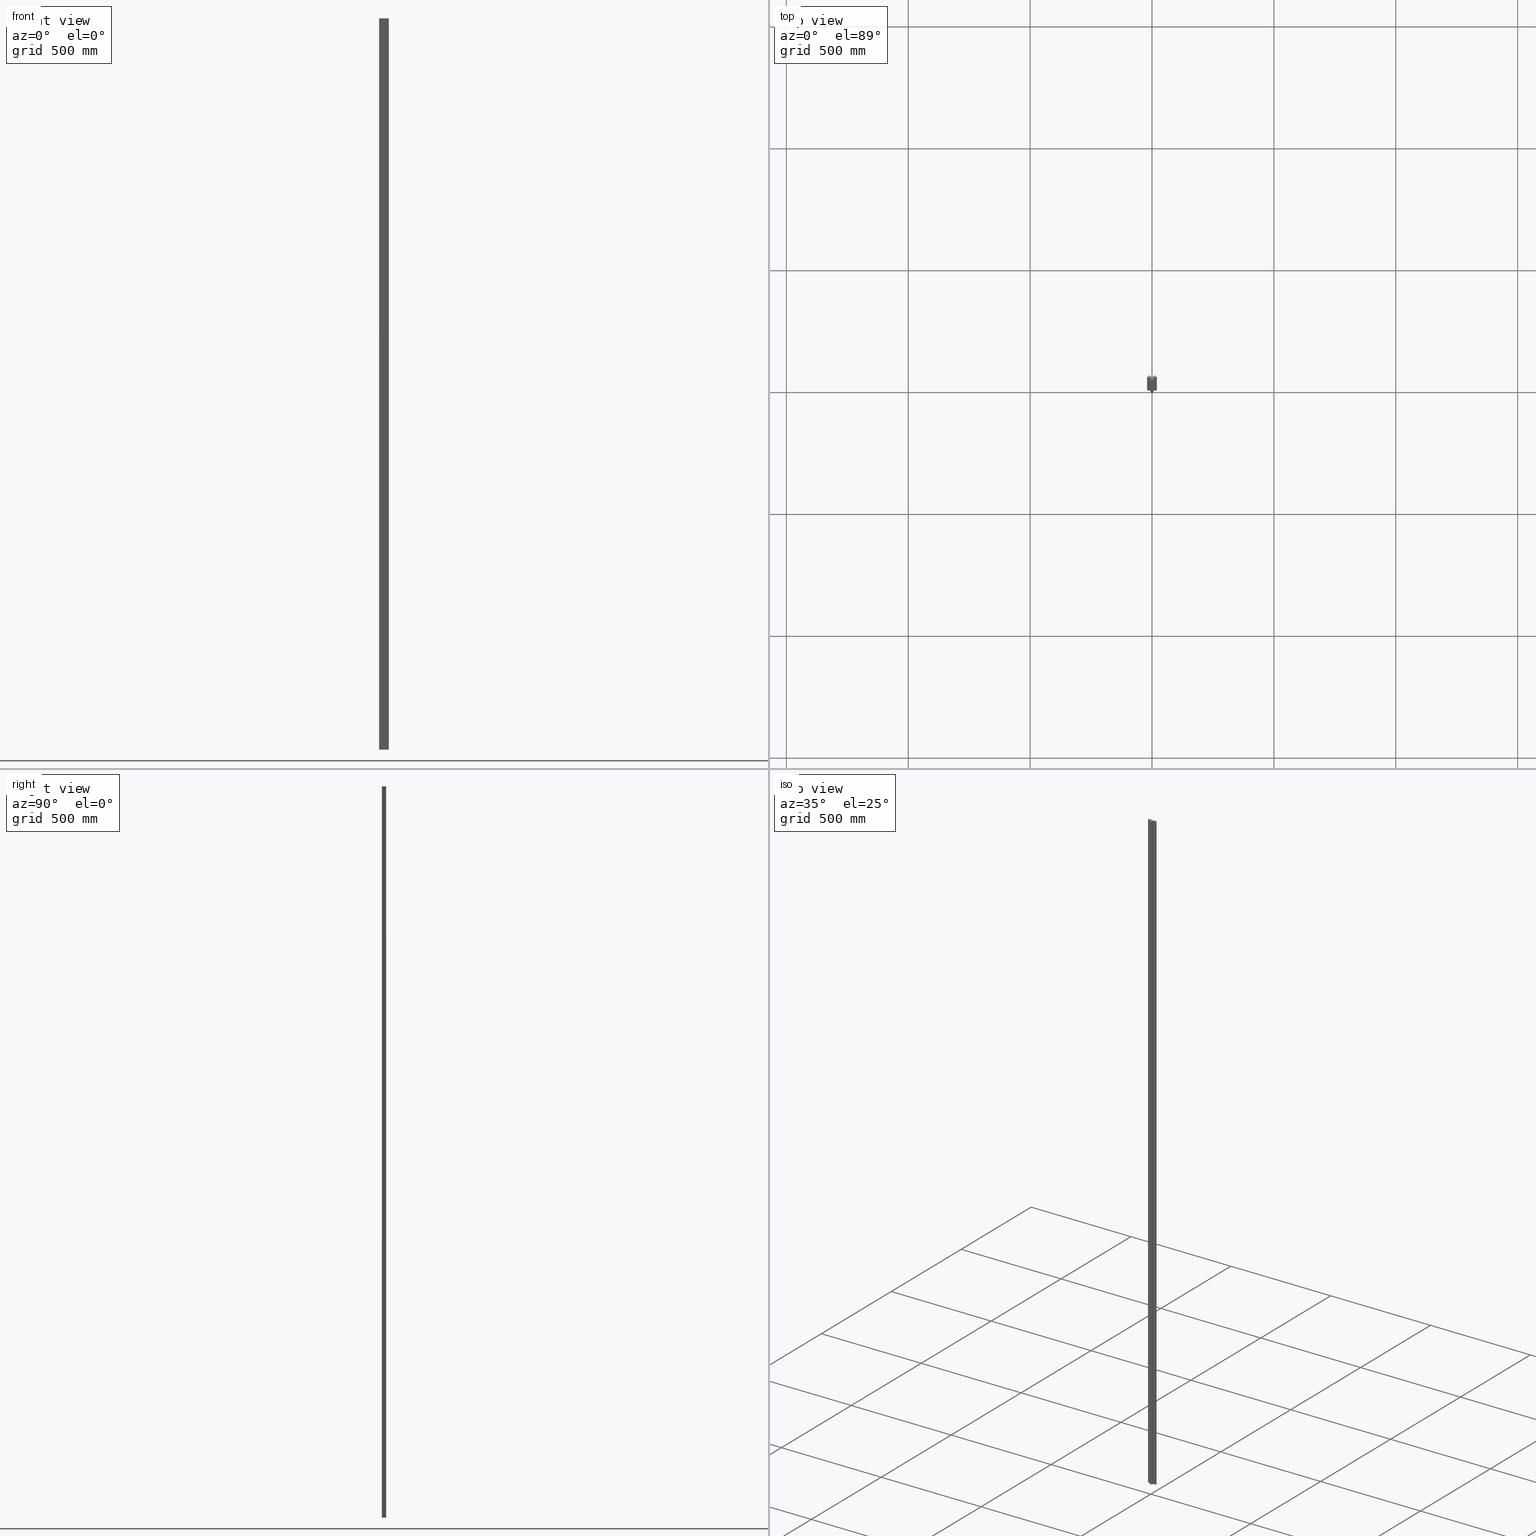
[diagram: canonical four-view strip — front | top / right | iso, engineering-drawing reading convention]
A machine part, canonical four-view strip (front | top / right | iso — engineering-drawing reading convention). The complete STEP part file that produces these views, byte-faithful:
ISO-10303-21;
HEADER;
/* Generated by software containing ST-Developer
 * from STEP Tools, Inc. (www.steptools.com) 
 */

FILE_DESCRIPTION(
/* description */ ('PROF.POLIZENE 40X17'),
/* implementation_level */ '2;1');

FILE_NAME(
/* name */ 
'C:\\Users\\tecnico7\\Desktop\\NUOVI DISEGNI 3D\\APRPZ0000022.stp',
/* time_stamp */ '2022-11-24T16:43:35+01:00',
/* author */ ('tecnico7'),
/* organization */ (''),
/* preprocessor_version */ 'ST-DEVELOPER v18.1',
/* originating_system */ 'Autodesk Inventor 2022',
/* authorisation */ '');

FILE_SCHEMA (('AUTOMOTIVE_DESIGN { 1 0 10303 214 3 1 1 }'));
ENDSEC;

DATA;
#10=MECHANICAL_DESIGN_GEOMETRIC_PRESENTATION_REPRESENTATION('',(#13),#860);
#11=SHAPE_REPRESENTATION_RELATIONSHIP('SRR','None',#867,#12);
#12=ADVANCED_BREP_SHAPE_REPRESENTATION('',(#14),#859);
#13=STYLED_ITEM('',(#876),#14);
#14=MANIFOLD_SOLID_BREP('Solido1',#519);
#15=CIRCLE('',#550,1.);
#16=CIRCLE('',#551,1.);
#17=CIRCLE('',#554,1.);
#18=CIRCLE('',#555,1.);
#19=CIRCLE('',#566,1.);
#20=CIRCLE('',#567,1.);
#21=CIRCLE('',#570,1.);
#22=CIRCLE('',#571,1.);
#23=CYLINDRICAL_SURFACE('',#549,1.);
#24=CYLINDRICAL_SURFACE('',#553,1.);
#25=CYLINDRICAL_SURFACE('',#565,1.);
#26=CYLINDRICAL_SURFACE('',#569,1.);
#27=FACE_OUTER_BOUND('',#53,.T.);
#28=FACE_OUTER_BOUND('',#54,.T.);
#29=FACE_OUTER_BOUND('',#55,.T.);
#30=FACE_OUTER_BOUND('',#56,.T.);
#31=FACE_OUTER_BOUND('',#57,.T.);
#32=FACE_OUTER_BOUND('',#58,.T.);
#33=FACE_OUTER_BOUND('',#59,.T.);
#34=FACE_OUTER_BOUND('',#60,.T.);
#35=FACE_OUTER_BOUND('',#61,.T.);
#36=FACE_OUTER_BOUND('',#62,.T.);
#37=FACE_OUTER_BOUND('',#63,.T.);
#38=FACE_OUTER_BOUND('',#64,.T.);
#39=FACE_OUTER_BOUND('',#65,.T.);
#40=FACE_OUTER_BOUND('',#66,.T.);
#41=FACE_OUTER_BOUND('',#67,.T.);
#42=FACE_OUTER_BOUND('',#68,.T.);
#43=FACE_OUTER_BOUND('',#69,.T.);
#44=FACE_OUTER_BOUND('',#70,.T.);
#45=FACE_OUTER_BOUND('',#71,.T.);
#46=FACE_OUTER_BOUND('',#72,.T.);
#47=FACE_OUTER_BOUND('',#73,.T.);
#48=FACE_OUTER_BOUND('',#74,.T.);
#49=FACE_OUTER_BOUND('',#75,.T.);
#50=FACE_OUTER_BOUND('',#76,.T.);
#51=FACE_OUTER_BOUND('',#77,.T.);
#52=FACE_OUTER_BOUND('',#78,.T.);
#53=EDGE_LOOP('',(#327,#328,#329,#330));
#54=EDGE_LOOP('',(#331,#332,#333,#334));
#55=EDGE_LOOP('',(#335,#336,#337,#338));
#56=EDGE_LOOP('',(#339,#340,#341,#342));
#57=EDGE_LOOP('',(#343,#344,#345,#346));
#58=EDGE_LOOP('',(#347,#348,#349,#350));
#59=EDGE_LOOP('',(#351,#352,#353,#354));
#60=EDGE_LOOP('',(#355,#356,#357,#358));
#61=EDGE_LOOP('',(#359,#360,#361,#362));
#62=EDGE_LOOP('',(#363,#364,#365,#366));
#63=EDGE_LOOP('',(#367,#368,#369,#370));
#64=EDGE_LOOP('',(#371,#372,#373,#374));
#65=EDGE_LOOP('',(#375,#376,#377,#378));
#66=EDGE_LOOP('',(#379,#380,#381,#382));
#67=EDGE_LOOP('',(#383,#384,#385,#386));
#68=EDGE_LOOP('',(#387,#388,#389,#390));
#69=EDGE_LOOP('',(#391,#392,#393,#394));
#70=EDGE_LOOP('',(#395,#396,#397,#398));
#71=EDGE_LOOP('',(#399,#400,#401,#402));
#72=EDGE_LOOP('',(#403,#404,#405,#406));
#73=EDGE_LOOP('',(#407,#408,#409,#410));
#74=EDGE_LOOP('',(#411,#412,#413,#414));
#75=EDGE_LOOP('',(#415,#416,#417,#418));
#76=EDGE_LOOP('',(#419,#420,#421,#422));
#77=EDGE_LOOP('',(#423,#424,#425,#426,#427,#428,#429,#430,#431,#432,#433,
#434,#435,#436,#437,#438,#439,#440,#441,#442,#443,#444,#445,#446));
#78=EDGE_LOOP('',(#447,#448,#449,#450,#451,#452,#453,#454,#455,#456,#457,
#458,#459,#460,#461,#462,#463,#464,#465,#466,#467,#468,#469,#470));
#79=LINE('',#714,#143);
#80=LINE('',#716,#144);
#81=LINE('',#718,#145);
#82=LINE('',#719,#146);
#83=LINE('',#722,#147);
#84=LINE('',#724,#148);
#85=LINE('',#725,#149);
#86=LINE('',#728,#150);
#87=LINE('',#730,#151);
#88=LINE('',#731,#152);
#89=LINE('',#734,#153);
#90=LINE('',#736,#154);
#91=LINE('',#737,#155);
#92=LINE('',#740,#156);
#93=LINE('',#742,#157);
#94=LINE('',#743,#158);
#95=LINE('',#746,#159);
#96=LINE('',#748,#160);
#97=LINE('',#749,#161);
#98=LINE('',#752,#162);
#99=LINE('',#754,#163);
#100=LINE('',#755,#164);
#101=LINE('',#761,#165);
#102=LINE('',#764,#166);
#103=LINE('',#766,#167);
#104=LINE('',#767,#168);
#105=LINE('',#773,#169);
#106=LINE('',#776,#170);
#107=LINE('',#778,#171);
#108=LINE('',#779,#172);
#109=LINE('',#782,#173);
#110=LINE('',#784,#174);
#111=LINE('',#785,#175);
#112=LINE('',#788,#176);
#113=LINE('',#790,#177);
#114=LINE('',#791,#178);
#115=LINE('',#794,#179);
#116=LINE('',#796,#180);
#117=LINE('',#797,#181);
#118=LINE('',#800,#182);
#119=LINE('',#802,#183);
#120=LINE('',#803,#184);
#121=LINE('',#806,#185);
#122=LINE('',#808,#186);
#123=LINE('',#809,#187);
#124=LINE('',#812,#188);
#125=LINE('',#814,#189);
#126=LINE('',#815,#190);
#127=LINE('',#818,#191);
#128=LINE('',#820,#192);
#129=LINE('',#821,#193);
#130=LINE('',#824,#194);
#131=LINE('',#826,#195);
#132=LINE('',#827,#196);
#133=LINE('',#833,#197);
#134=LINE('',#836,#198);
#135=LINE('',#838,#199);
#136=LINE('',#839,#200);
#137=LINE('',#845,#201);
#138=LINE('',#848,#202);
#139=LINE('',#850,#203);
#140=LINE('',#851,#204);
#141=LINE('',#853,#205);
#142=LINE('',#854,#206);
#143=VECTOR('',#580,10.);
#144=VECTOR('',#581,10.);
#145=VECTOR('',#582,10.);
#146=VECTOR('',#583,10.);
#147=VECTOR('',#586,10.);
#148=VECTOR('',#587,10.);
#149=VECTOR('',#588,10.);
#150=VECTOR('',#591,10.);
#151=VECTOR('',#592,10.);
#152=VECTOR('',#593,10.);
#153=VECTOR('',#596,10.);
#154=VECTOR('',#597,10.);
#155=VECTOR('',#598,10.);
#156=VECTOR('',#601,10.);
#157=VECTOR('',#602,10.);
#158=VECTOR('',#603,10.);
#159=VECTOR('',#606,10.);
#160=VECTOR('',#607,10.);
#161=VECTOR('',#608,10.);
#162=VECTOR('',#611,10.);
#163=VECTOR('',#612,10.);
#164=VECTOR('',#613,10.);
#165=VECTOR('',#620,10.);
#166=VECTOR('',#623,10.);
#167=VECTOR('',#624,10.);
#168=VECTOR('',#625,10.);
#169=VECTOR('',#632,10.);
#170=VECTOR('',#635,10.);
#171=VECTOR('',#636,10.);
#172=VECTOR('',#637,10.);
#173=VECTOR('',#640,10.);
#174=VECTOR('',#641,10.);
#175=VECTOR('',#642,10.);
#176=VECTOR('',#645,10.);
#177=VECTOR('',#646,10.);
#178=VECTOR('',#647,10.);
#179=VECTOR('',#650,10.);
#180=VECTOR('',#651,10.);
#181=VECTOR('',#652,10.);
#182=VECTOR('',#655,10.);
#183=VECTOR('',#656,10.);
#184=VECTOR('',#657,10.);
#185=VECTOR('',#660,10.);
#186=VECTOR('',#661,10.);
#187=VECTOR('',#662,10.);
#188=VECTOR('',#665,10.);
#189=VECTOR('',#666,10.);
#190=VECTOR('',#667,10.);
#191=VECTOR('',#670,10.);
#192=VECTOR('',#671,10.);
#193=VECTOR('',#672,10.);
#194=VECTOR('',#675,10.);
#195=VECTOR('',#676,10.);
#196=VECTOR('',#677,10.);
#197=VECTOR('',#684,10.);
#198=VECTOR('',#687,10.);
#199=VECTOR('',#688,10.);
#200=VECTOR('',#689,10.);
#201=VECTOR('',#696,10.);
#202=VECTOR('',#699,10.);
#203=VECTOR('',#700,10.);
#204=VECTOR('',#701,10.);
#205=VECTOR('',#704,10.);
#206=VECTOR('',#705,10.);
#207=VERTEX_POINT('',#712);
#208=VERTEX_POINT('',#713);
#209=VERTEX_POINT('',#715);
#210=VERTEX_POINT('',#717);
#211=VERTEX_POINT('',#721);
#212=VERTEX_POINT('',#723);
#213=VERTEX_POINT('',#727);
#214=VERTEX_POINT('',#729);
#215=VERTEX_POINT('',#733);
#216=VERTEX_POINT('',#735);
#217=VERTEX_POINT('',#739);
#218=VERTEX_POINT('',#741);
#219=VERTEX_POINT('',#745);
#220=VERTEX_POINT('',#747);
#221=VERTEX_POINT('',#751);
#222=VERTEX_POINT('',#753);
#223=VERTEX_POINT('',#757);
#224=VERTEX_POINT('',#759);
#225=VERTEX_POINT('',#763);
#226=VERTEX_POINT('',#765);
#227=VERTEX_POINT('',#769);
#228=VERTEX_POINT('',#771);
#229=VERTEX_POINT('',#775);
#230=VERTEX_POINT('',#777);
#231=VERTEX_POINT('',#781);
#232=VERTEX_POINT('',#783);
#233=VERTEX_POINT('',#787);
#234=VERTEX_POINT('',#789);
#235=VERTEX_POINT('',#793);
#236=VERTEX_POINT('',#795);
#237=VERTEX_POINT('',#799);
#238=VERTEX_POINT('',#801);
#239=VERTEX_POINT('',#805);
#240=VERTEX_POINT('',#807);
#241=VERTEX_POINT('',#811);
#242=VERTEX_POINT('',#813);
#243=VERTEX_POINT('',#817);
#244=VERTEX_POINT('',#819);
#245=VERTEX_POINT('',#823);
#246=VERTEX_POINT('',#825);
#247=VERTEX_POINT('',#829);
#248=VERTEX_POINT('',#831);
#249=VERTEX_POINT('',#835);
#250=VERTEX_POINT('',#837);
#251=VERTEX_POINT('',#841);
#252=VERTEX_POINT('',#843);
#253=VERTEX_POINT('',#847);
#254=VERTEX_POINT('',#849);
#255=EDGE_CURVE('',#207,#208,#79,.T.);
#256=EDGE_CURVE('',#207,#209,#80,.T.);
#257=EDGE_CURVE('',#210,#209,#81,.T.);
#258=EDGE_CURVE('',#208,#210,#82,.T.);
#259=EDGE_CURVE('',#208,#211,#83,.T.);
#260=EDGE_CURVE('',#212,#210,#84,.T.);
#261=EDGE_CURVE('',#211,#212,#85,.T.);
#262=EDGE_CURVE('',#211,#213,#86,.T.);
#263=EDGE_CURVE('',#214,#212,#87,.T.);
#264=EDGE_CURVE('',#213,#214,#88,.T.);
#265=EDGE_CURVE('',#213,#215,#89,.T.);
#266=EDGE_CURVE('',#216,#214,#90,.T.);
#267=EDGE_CURVE('',#215,#216,#91,.T.);
#268=EDGE_CURVE('',#215,#217,#92,.T.);
#269=EDGE_CURVE('',#218,#216,#93,.T.);
#270=EDGE_CURVE('',#217,#218,#94,.T.);
#271=EDGE_CURVE('',#217,#219,#95,.T.);
#272=EDGE_CURVE('',#220,#218,#96,.T.);
#273=EDGE_CURVE('',#219,#220,#97,.T.);
#274=EDGE_CURVE('',#219,#221,#98,.T.);
#275=EDGE_CURVE('',#222,#220,#99,.T.);
#276=EDGE_CURVE('',#221,#222,#100,.T.);
#277=EDGE_CURVE('',#221,#223,#15,.T.);
#278=EDGE_CURVE('',#224,#222,#16,.T.);
#279=EDGE_CURVE('',#223,#224,#101,.T.);
#280=EDGE_CURVE('',#223,#225,#102,.T.);
#281=EDGE_CURVE('',#226,#224,#103,.T.);
#282=EDGE_CURVE('',#225,#226,#104,.T.);
#283=EDGE_CURVE('',#225,#227,#17,.T.);
#284=EDGE_CURVE('',#228,#226,#18,.T.);
#285=EDGE_CURVE('',#227,#228,#105,.T.);
#286=EDGE_CURVE('',#227,#229,#106,.T.);
#287=EDGE_CURVE('',#230,#228,#107,.T.);
#288=EDGE_CURVE('',#229,#230,#108,.T.);
#289=EDGE_CURVE('',#229,#231,#109,.T.);
#290=EDGE_CURVE('',#232,#230,#110,.T.);
#291=EDGE_CURVE('',#231,#232,#111,.T.);
#292=EDGE_CURVE('',#231,#233,#112,.T.);
#293=EDGE_CURVE('',#234,#232,#113,.T.);
#294=EDGE_CURVE('',#233,#234,#114,.T.);
#295=EDGE_CURVE('',#233,#235,#115,.T.);
#296=EDGE_CURVE('',#236,#234,#116,.T.);
#297=EDGE_CURVE('',#235,#236,#117,.T.);
#298=EDGE_CURVE('',#235,#237,#118,.T.);
#299=EDGE_CURVE('',#238,#236,#119,.T.);
#300=EDGE_CURVE('',#237,#238,#120,.T.);
#301=EDGE_CURVE('',#237,#239,#121,.T.);
#302=EDGE_CURVE('',#240,#238,#122,.T.);
#303=EDGE_CURVE('',#239,#240,#123,.T.);
#304=EDGE_CURVE('',#239,#241,#124,.T.);
#305=EDGE_CURVE('',#242,#240,#125,.T.);
#306=EDGE_CURVE('',#241,#242,#126,.T.);
#307=EDGE_CURVE('',#241,#243,#127,.T.);
#308=EDGE_CURVE('',#244,#242,#128,.T.);
#309=EDGE_CURVE('',#243,#244,#129,.T.);
#310=EDGE_CURVE('',#243,#245,#130,.T.);
#311=EDGE_CURVE('',#246,#244,#131,.T.);
#312=EDGE_CURVE('',#245,#246,#132,.T.);
#313=EDGE_CURVE('',#245,#247,#19,.T.);
#314=EDGE_CURVE('',#248,#246,#20,.T.);
#315=EDGE_CURVE('',#247,#248,#133,.T.);
#316=EDGE_CURVE('',#247,#249,#134,.T.);
#317=EDGE_CURVE('',#250,#248,#135,.T.);
#318=EDGE_CURVE('',#249,#250,#136,.T.);
#319=EDGE_CURVE('',#249,#251,#21,.T.);
#320=EDGE_CURVE('',#252,#250,#22,.T.);
#321=EDGE_CURVE('',#251,#252,#137,.T.);
#322=EDGE_CURVE('',#251,#253,#138,.T.);
#323=EDGE_CURVE('',#254,#252,#139,.T.);
#324=EDGE_CURVE('',#253,#254,#140,.T.);
#325=EDGE_CURVE('',#253,#207,#141,.T.);
#326=EDGE_CURVE('',#209,#254,#142,.T.);
#327=ORIENTED_EDGE('',*,*,#255,.F.);
#328=ORIENTED_EDGE('',*,*,#256,.T.);
#329=ORIENTED_EDGE('',*,*,#257,.F.);
#330=ORIENTED_EDGE('',*,*,#258,.F.);
#331=ORIENTED_EDGE('',*,*,#259,.F.);
#332=ORIENTED_EDGE('',*,*,#258,.T.);
#333=ORIENTED_EDGE('',*,*,#260,.F.);
#334=ORIENTED_EDGE('',*,*,#261,.F.);
#335=ORIENTED_EDGE('',*,*,#262,.F.);
#336=ORIENTED_EDGE('',*,*,#261,.T.);
#337=ORIENTED_EDGE('',*,*,#263,.F.);
#338=ORIENTED_EDGE('',*,*,#264,.F.);
#339=ORIENTED_EDGE('',*,*,#265,.F.);
#340=ORIENTED_EDGE('',*,*,#264,.T.);
#341=ORIENTED_EDGE('',*,*,#266,.F.);
#342=ORIENTED_EDGE('',*,*,#267,.F.);
#343=ORIENTED_EDGE('',*,*,#268,.F.);
#344=ORIENTED_EDGE('',*,*,#267,.T.);
#345=ORIENTED_EDGE('',*,*,#269,.F.);
#346=ORIENTED_EDGE('',*,*,#270,.F.);
#347=ORIENTED_EDGE('',*,*,#271,.F.);
#348=ORIENTED_EDGE('',*,*,#270,.T.);
#349=ORIENTED_EDGE('',*,*,#272,.F.);
#350=ORIENTED_EDGE('',*,*,#273,.F.);
#351=ORIENTED_EDGE('',*,*,#274,.F.);
#352=ORIENTED_EDGE('',*,*,#273,.T.);
#353=ORIENTED_EDGE('',*,*,#275,.F.);
#354=ORIENTED_EDGE('',*,*,#276,.F.);
#355=ORIENTED_EDGE('',*,*,#277,.F.);
#356=ORIENTED_EDGE('',*,*,#276,.T.);
#357=ORIENTED_EDGE('',*,*,#278,.F.);
#358=ORIENTED_EDGE('',*,*,#279,.F.);
#359=ORIENTED_EDGE('',*,*,#280,.F.);
#360=ORIENTED_EDGE('',*,*,#279,.T.);
#361=ORIENTED_EDGE('',*,*,#281,.F.);
#362=ORIENTED_EDGE('',*,*,#282,.F.);
#363=ORIENTED_EDGE('',*,*,#283,.F.);
#364=ORIENTED_EDGE('',*,*,#282,.T.);
#365=ORIENTED_EDGE('',*,*,#284,.F.);
#366=ORIENTED_EDGE('',*,*,#285,.F.);
#367=ORIENTED_EDGE('',*,*,#286,.F.);
#368=ORIENTED_EDGE('',*,*,#285,.T.);
#369=ORIENTED_EDGE('',*,*,#287,.F.);
#370=ORIENTED_EDGE('',*,*,#288,.F.);
#371=ORIENTED_EDGE('',*,*,#289,.F.);
#372=ORIENTED_EDGE('',*,*,#288,.T.);
#373=ORIENTED_EDGE('',*,*,#290,.F.);
#374=ORIENTED_EDGE('',*,*,#291,.F.);
#375=ORIENTED_EDGE('',*,*,#292,.F.);
#376=ORIENTED_EDGE('',*,*,#291,.T.);
#377=ORIENTED_EDGE('',*,*,#293,.F.);
#378=ORIENTED_EDGE('',*,*,#294,.F.);
#379=ORIENTED_EDGE('',*,*,#295,.F.);
#380=ORIENTED_EDGE('',*,*,#294,.T.);
#381=ORIENTED_EDGE('',*,*,#296,.F.);
#382=ORIENTED_EDGE('',*,*,#297,.F.);
#383=ORIENTED_EDGE('',*,*,#298,.F.);
#384=ORIENTED_EDGE('',*,*,#297,.T.);
#385=ORIENTED_EDGE('',*,*,#299,.F.);
#386=ORIENTED_EDGE('',*,*,#300,.F.);
#387=ORIENTED_EDGE('',*,*,#301,.F.);
#388=ORIENTED_EDGE('',*,*,#300,.T.);
#389=ORIENTED_EDGE('',*,*,#302,.F.);
#390=ORIENTED_EDGE('',*,*,#303,.F.);
#391=ORIENTED_EDGE('',*,*,#304,.F.);
#392=ORIENTED_EDGE('',*,*,#303,.T.);
#393=ORIENTED_EDGE('',*,*,#305,.F.);
#394=ORIENTED_EDGE('',*,*,#306,.F.);
#395=ORIENTED_EDGE('',*,*,#307,.F.);
#396=ORIENTED_EDGE('',*,*,#306,.T.);
#397=ORIENTED_EDGE('',*,*,#308,.F.);
#398=ORIENTED_EDGE('',*,*,#309,.F.);
#399=ORIENTED_EDGE('',*,*,#310,.F.);
#400=ORIENTED_EDGE('',*,*,#309,.T.);
#401=ORIENTED_EDGE('',*,*,#311,.F.);
#402=ORIENTED_EDGE('',*,*,#312,.F.);
#403=ORIENTED_EDGE('',*,*,#313,.F.);
#404=ORIENTED_EDGE('',*,*,#312,.T.);
#405=ORIENTED_EDGE('',*,*,#314,.F.);
#406=ORIENTED_EDGE('',*,*,#315,.F.);
#407=ORIENTED_EDGE('',*,*,#316,.F.);
#408=ORIENTED_EDGE('',*,*,#315,.T.);
#409=ORIENTED_EDGE('',*,*,#317,.F.);
#410=ORIENTED_EDGE('',*,*,#318,.F.);
#411=ORIENTED_EDGE('',*,*,#319,.F.);
#412=ORIENTED_EDGE('',*,*,#318,.T.);
#413=ORIENTED_EDGE('',*,*,#320,.F.);
#414=ORIENTED_EDGE('',*,*,#321,.F.);
#415=ORIENTED_EDGE('',*,*,#322,.F.);
#416=ORIENTED_EDGE('',*,*,#321,.T.);
#417=ORIENTED_EDGE('',*,*,#323,.F.);
#418=ORIENTED_EDGE('',*,*,#324,.F.);
#419=ORIENTED_EDGE('',*,*,#325,.F.);
#420=ORIENTED_EDGE('',*,*,#324,.T.);
#421=ORIENTED_EDGE('',*,*,#326,.F.);
#422=ORIENTED_EDGE('',*,*,#256,.F.);
#423=ORIENTED_EDGE('',*,*,#325,.T.);
#424=ORIENTED_EDGE('',*,*,#255,.T.);
#425=ORIENTED_EDGE('',*,*,#259,.T.);
#426=ORIENTED_EDGE('',*,*,#262,.T.);
#427=ORIENTED_EDGE('',*,*,#265,.T.);
#428=ORIENTED_EDGE('',*,*,#268,.T.);
#429=ORIENTED_EDGE('',*,*,#271,.T.);
#430=ORIENTED_EDGE('',*,*,#274,.T.);
#431=ORIENTED_EDGE('',*,*,#277,.T.);
#432=ORIENTED_EDGE('',*,*,#280,.T.);
#433=ORIENTED_EDGE('',*,*,#283,.T.);
#434=ORIENTED_EDGE('',*,*,#286,.T.);
#435=ORIENTED_EDGE('',*,*,#289,.T.);
#436=ORIENTED_EDGE('',*,*,#292,.T.);
#437=ORIENTED_EDGE('',*,*,#295,.T.);
#438=ORIENTED_EDGE('',*,*,#298,.T.);
#439=ORIENTED_EDGE('',*,*,#301,.T.);
#440=ORIENTED_EDGE('',*,*,#304,.T.);
#441=ORIENTED_EDGE('',*,*,#307,.T.);
#442=ORIENTED_EDGE('',*,*,#310,.T.);
#443=ORIENTED_EDGE('',*,*,#313,.T.);
#444=ORIENTED_EDGE('',*,*,#316,.T.);
#445=ORIENTED_EDGE('',*,*,#319,.T.);
#446=ORIENTED_EDGE('',*,*,#322,.T.);
#447=ORIENTED_EDGE('',*,*,#326,.T.);
#448=ORIENTED_EDGE('',*,*,#323,.T.);
#449=ORIENTED_EDGE('',*,*,#320,.T.);
#450=ORIENTED_EDGE('',*,*,#317,.T.);
#451=ORIENTED_EDGE('',*,*,#314,.T.);
#452=ORIENTED_EDGE('',*,*,#311,.T.);
#453=ORIENTED_EDGE('',*,*,#308,.T.);
#454=ORIENTED_EDGE('',*,*,#305,.T.);
#455=ORIENTED_EDGE('',*,*,#302,.T.);
#456=ORIENTED_EDGE('',*,*,#299,.T.);
#457=ORIENTED_EDGE('',*,*,#296,.T.);
#458=ORIENTED_EDGE('',*,*,#293,.T.);
#459=ORIENTED_EDGE('',*,*,#290,.T.);
#460=ORIENTED_EDGE('',*,*,#287,.T.);
#461=ORIENTED_EDGE('',*,*,#284,.T.);
#462=ORIENTED_EDGE('',*,*,#281,.T.);
#463=ORIENTED_EDGE('',*,*,#278,.T.);
#464=ORIENTED_EDGE('',*,*,#275,.T.);
#465=ORIENTED_EDGE('',*,*,#272,.T.);
#466=ORIENTED_EDGE('',*,*,#269,.T.);
#467=ORIENTED_EDGE('',*,*,#266,.T.);
#468=ORIENTED_EDGE('',*,*,#263,.T.);
#469=ORIENTED_EDGE('',*,*,#260,.T.);
#470=ORIENTED_EDGE('',*,*,#257,.T.);
#471=PLANE('',#542);
#472=PLANE('',#543);
#473=PLANE('',#544);
#474=PLANE('',#545);
#475=PLANE('',#546);
#476=PLANE('',#547);
#477=PLANE('',#548);
#478=PLANE('',#552);
#479=PLANE('',#556);
#480=PLANE('',#557);
#481=PLANE('',#558);
#482=PLANE('',#559);
#483=PLANE('',#560);
#484=PLANE('',#561);
#485=PLANE('',#562);
#486=PLANE('',#563);
#487=PLANE('',#564);
#488=PLANE('',#568);
#489=PLANE('',#572);
#490=PLANE('',#573);
#491=PLANE('',#574);
#492=PLANE('',#575);
#493=ADVANCED_FACE('',(#27),#471,.T.);
#494=ADVANCED_FACE('',(#28),#472,.T.);
#495=ADVANCED_FACE('',(#29),#473,.T.);
#496=ADVANCED_FACE('',(#30),#474,.T.);
#497=ADVANCED_FACE('',(#31),#475,.T.);
#498=ADVANCED_FACE('',(#32),#476,.T.);
#499=ADVANCED_FACE('',(#33),#477,.T.);
#500=ADVANCED_FACE('',(#34),#23,.T.);
#501=ADVANCED_FACE('',(#35),#478,.T.);
#502=ADVANCED_FACE('',(#36),#24,.T.);
#503=ADVANCED_FACE('',(#37),#479,.T.);
#504=ADVANCED_FACE('',(#38),#480,.T.);
#505=ADVANCED_FACE('',(#39),#481,.T.);
#506=ADVANCED_FACE('',(#40),#482,.T.);
#507=ADVANCED_FACE('',(#41),#483,.T.);
#508=ADVANCED_FACE('',(#42),#484,.T.);
#509=ADVANCED_FACE('',(#43),#485,.T.);
#510=ADVANCED_FACE('',(#44),#486,.T.);
#511=ADVANCED_FACE('',(#45),#487,.T.);
#512=ADVANCED_FACE('',(#46),#25,.T.);
#513=ADVANCED_FACE('',(#47),#488,.T.);
#514=ADVANCED_FACE('',(#48),#26,.T.);
#515=ADVANCED_FACE('',(#49),#489,.T.);
#516=ADVANCED_FACE('',(#50),#490,.T.);
#517=ADVANCED_FACE('',(#51),#491,.F.);
#518=ADVANCED_FACE('',(#52),#492,.T.);
#519=CLOSED_SHELL('',(#493,#494,#495,#496,#497,#498,#499,#500,#501,#502,
#503,#504,#505,#506,#507,#508,#509,#510,#511,#512,#513,#514,#515,#516,#517,
#518));
#520=DERIVED_UNIT_ELEMENT(#523,1.);
#521=DERIVED_UNIT_ELEMENT(#862,-3.);
#522=DIMENSIONAL_EXPONENTS(1.,0.,0.,0.,0.,0.,0.);
#523=(
CONVERSION_BASED_UNIT('gram',#525)
MASS_UNIT()
NAMED_UNIT(#522)
);
#524=(
MASS_UNIT()
NAMED_UNIT(*)
SI_UNIT(.KILO.,.GRAM.)
);
#525=MASS_MEASURE_WITH_UNIT(MASS_MEASURE(0.001),#524);
#526=DERIVED_UNIT((#520,#521));
#527=MEASURE_REPRESENTATION_ITEM('density measure',
POSITIVE_RATIO_MEASURE(0.94),#526);
#528=PROPERTY_DEFINITION_REPRESENTATION(#533,#530);
#529=PROPERTY_DEFINITION_REPRESENTATION(#534,#531);
#530=REPRESENTATION('material name',(#532),#859);
#531=REPRESENTATION('density',(#527),#859);
#532=DESCRIPTIVE_REPRESENTATION_ITEM('Polizene UHMW nero',
'Polizene UHMW nero');
#533=PROPERTY_DEFINITION('material property','material name',#869);
#534=PROPERTY_DEFINITION('material property','density of part',#869);
#535=DATE_TIME_ROLE('creation_date');
#536=APPLIED_DATE_AND_TIME_ASSIGNMENT(#537,#535,(#869));
#537=DATE_AND_TIME(#538,#539);
#538=CALENDAR_DATE(2016,28,10);
#539=LOCAL_TIME(0,0,0.,#540);
#540=COORDINATED_UNIVERSAL_TIME_OFFSET(0,0,.BEHIND.);
#541=AXIS2_PLACEMENT_3D('placement',#710,#576,#577);
#542=AXIS2_PLACEMENT_3D('',#711,#578,#579);
#543=AXIS2_PLACEMENT_3D('',#720,#584,#585);
#544=AXIS2_PLACEMENT_3D('',#726,#589,#590);
#545=AXIS2_PLACEMENT_3D('',#732,#594,#595);
#546=AXIS2_PLACEMENT_3D('',#738,#599,#600);
#547=AXIS2_PLACEMENT_3D('',#744,#604,#605);
#548=AXIS2_PLACEMENT_3D('',#750,#609,#610);
#549=AXIS2_PLACEMENT_3D('',#756,#614,#615);
#550=AXIS2_PLACEMENT_3D('',#758,#616,#617);
#551=AXIS2_PLACEMENT_3D('',#760,#618,#619);
#552=AXIS2_PLACEMENT_3D('',#762,#621,#622);
#553=AXIS2_PLACEMENT_3D('',#768,#626,#627);
#554=AXIS2_PLACEMENT_3D('',#770,#628,#629);
#555=AXIS2_PLACEMENT_3D('',#772,#630,#631);
#556=AXIS2_PLACEMENT_3D('',#774,#633,#634);
#557=AXIS2_PLACEMENT_3D('',#780,#638,#639);
#558=AXIS2_PLACEMENT_3D('',#786,#643,#644);
#559=AXIS2_PLACEMENT_3D('',#792,#648,#649);
#560=AXIS2_PLACEMENT_3D('',#798,#653,#654);
#561=AXIS2_PLACEMENT_3D('',#804,#658,#659);
#562=AXIS2_PLACEMENT_3D('',#810,#663,#664);
#563=AXIS2_PLACEMENT_3D('',#816,#668,#669);
#564=AXIS2_PLACEMENT_3D('',#822,#673,#674);
#565=AXIS2_PLACEMENT_3D('',#828,#678,#679);
#566=AXIS2_PLACEMENT_3D('',#830,#680,#681);
#567=AXIS2_PLACEMENT_3D('',#832,#682,#683);
#568=AXIS2_PLACEMENT_3D('',#834,#685,#686);
#569=AXIS2_PLACEMENT_3D('',#840,#690,#691);
#570=AXIS2_PLACEMENT_3D('',#842,#692,#693);
#571=AXIS2_PLACEMENT_3D('',#844,#694,#695);
#572=AXIS2_PLACEMENT_3D('',#846,#697,#698);
#573=AXIS2_PLACEMENT_3D('',#852,#702,#703);
#574=AXIS2_PLACEMENT_3D('',#855,#706,#707);
#575=AXIS2_PLACEMENT_3D('',#856,#708,#709);
#576=DIRECTION('axis',(0.,0.,1.));
#577=DIRECTION('refdir',(1.,0.,0.));
#578=DIRECTION('center_axis',(0.,1.,0.));
#579=DIRECTION('ref_axis',(-1.,0.,0.));
#580=DIRECTION('',(1.,0.,0.));
#581=DIRECTION('',(0.,0.,1.));
#582=DIRECTION('',(-1.,0.,0.));
#583=DIRECTION('',(0.,0.,1.));
#584=DIRECTION('center_axis',(1.,-2.88657950268712E-14,0.));
#585=DIRECTION('ref_axis',(2.88657950268712E-14,1.,0.));
#586=DIRECTION('',(-2.88657950268712E-14,-1.,0.));
#587=DIRECTION('',(2.88657950268712E-14,1.,0.));
#588=DIRECTION('',(0.,0.,1.));
#589=DIRECTION('center_axis',(-3.08395284618106E-16,1.,0.));
#590=DIRECTION('ref_axis',(-1.,-3.08395284618106E-16,0.));
#591=DIRECTION('',(1.,3.08395284618106E-16,0.));
#592=DIRECTION('',(-1.,-3.08395284618106E-16,0.));
#593=DIRECTION('',(0.,0.,1.));
#594=DIRECTION('center_axis',(-1.,0.,0.));
#595=DIRECTION('ref_axis',(0.,-1.,0.));
#596=DIRECTION('',(0.,1.,0.));
#597=DIRECTION('',(0.,-1.,0.));
#598=DIRECTION('',(0.,0.,1.));
#599=DIRECTION('center_axis',(-2.92163953848716E-16,1.,0.));
#600=DIRECTION('ref_axis',(-1.,-2.92163953848716E-16,0.));
#601=DIRECTION('',(1.,2.92163953848716E-16,0.));
#602=DIRECTION('',(-1.,-2.92163953848716E-16,0.));
#603=DIRECTION('',(0.,0.,1.));
#604=DIRECTION('center_axis',(1.,0.,0.));
#605=DIRECTION('ref_axis',(0.,1.,0.));
#606=DIRECTION('',(0.,-1.,0.));
#607=DIRECTION('',(0.,1.,0.));
#608=DIRECTION('',(0.,0.,1.));
#609=DIRECTION('center_axis',(-5.28677630773854E-16,1.,0.));
#610=DIRECTION('ref_axis',(-1.,-5.28677630773854E-16,0.));
#611=DIRECTION('',(1.,5.28677630773854E-16,0.));
#612=DIRECTION('',(-1.,-5.28677630773854E-16,0.));
#613=DIRECTION('',(0.,0.,1.));
#614=DIRECTION('center_axis',(0.,0.,1.));
#615=DIRECTION('ref_axis',(-1.,0.,0.));
#616=DIRECTION('center_axis',(0.,0.,-1.));
#617=DIRECTION('ref_axis',(-1.,0.,0.));
#618=DIRECTION('center_axis',(0.,0.,1.));
#619=DIRECTION('ref_axis',(-1.,0.,0.));
#620=DIRECTION('',(0.,0.,1.));
#621=DIRECTION('center_axis',(1.,7.40148806595567E-16,0.));
#622=DIRECTION('ref_axis',(-7.40148806595567E-16,1.,0.));
#623=DIRECTION('',(7.40148806595567E-16,-1.,0.));
#624=DIRECTION('',(-7.40148806595567E-16,1.,0.));
#625=DIRECTION('',(0.,0.,1.));
#626=DIRECTION('center_axis',(0.,0.,1.));
#627=DIRECTION('ref_axis',(3.01980662698042E-13,1.,0.));
#628=DIRECTION('center_axis',(0.,0.,-1.));
#629=DIRECTION('ref_axis',(3.01980662698042E-13,1.,0.));
#630=DIRECTION('center_axis',(0.,0.,1.));
#631=DIRECTION('ref_axis',(3.01980662698042E-13,1.,0.));
#632=DIRECTION('',(0.,0.,1.));
#633=DIRECTION('center_axis',(7.40148683083458E-17,-1.,0.));
#634=DIRECTION('ref_axis',(1.,7.40148683083458E-17,0.));
#635=DIRECTION('',(-1.,-7.40148683083458E-17,0.));
#636=DIRECTION('',(1.,7.40148683083458E-17,0.));
#637=DIRECTION('',(0.,0.,1.));
#638=DIRECTION('center_axis',(1.,3.5432680766678E-16,0.));
#639=DIRECTION('ref_axis',(-3.5432680766678E-16,1.,0.));
#640=DIRECTION('',(3.5432680766678E-16,-1.,0.));
#641=DIRECTION('',(-3.5432680766678E-16,1.,0.));
#642=DIRECTION('',(0.,0.,1.));
#643=DIRECTION('center_axis',(0.,1.,0.));
#644=DIRECTION('ref_axis',(-1.,0.,0.));
#645=DIRECTION('',(1.,0.,0.));
#646=DIRECTION('',(-1.,0.,0.));
#647=DIRECTION('',(0.,0.,1.));
#648=DIRECTION('center_axis',(1.,0.,0.));
#649=DIRECTION('ref_axis',(0.,1.,0.));
#650=DIRECTION('',(0.,-1.,0.));
#651=DIRECTION('',(0.,1.,0.));
#652=DIRECTION('',(0.,0.,1.));
#653=DIRECTION('center_axis',(1.92153985031277E-16,-1.,0.));
#654=DIRECTION('ref_axis',(1.,1.92153985031277E-16,0.));
#655=DIRECTION('',(-1.,-1.92153985031277E-16,0.));
#656=DIRECTION('',(1.,1.92153985031277E-16,0.));
#657=DIRECTION('',(0.,0.,1.));
#658=DIRECTION('center_axis',(-1.,0.,0.));
#659=DIRECTION('ref_axis',(0.,-1.,0.));
#660=DIRECTION('',(0.,1.,0.));
#661=DIRECTION('',(0.,-1.,0.));
#662=DIRECTION('',(0.,0.,1.));
#663=DIRECTION('center_axis',(0.,1.,0.));
#664=DIRECTION('ref_axis',(-1.,0.,0.));
#665=DIRECTION('',(1.,0.,0.));
#666=DIRECTION('',(-1.,0.,0.));
#667=DIRECTION('',(0.,0.,1.));
#668=DIRECTION('center_axis',(-1.,0.,0.));
#669=DIRECTION('ref_axis',(0.,-1.,0.));
#670=DIRECTION('',(0.,1.,0.));
#671=DIRECTION('',(0.,-1.,0.));
#672=DIRECTION('',(0.,0.,1.));
#673=DIRECTION('center_axis',(1.48029764342872E-16,-1.,0.));
#674=DIRECTION('ref_axis',(1.,1.48029764342872E-16,0.));
#675=DIRECTION('',(-1.,-1.48029764342872E-16,0.));
#676=DIRECTION('',(1.,1.48029764342872E-16,0.));
#677=DIRECTION('',(0.,0.,1.));
#678=DIRECTION('center_axis',(0.,0.,1.));
#679=DIRECTION('ref_axis',(0.999999999999985,1.73387364466038E-7,0.));
#680=DIRECTION('center_axis',(0.,0.,-1.));
#681=DIRECTION('ref_axis',(0.999999999999985,1.73387364466038E-7,0.));
#682=DIRECTION('center_axis',(0.,0.,1.));
#683=DIRECTION('ref_axis',(0.999999999999985,1.73387364466038E-7,0.));
#684=DIRECTION('',(0.,0.,1.));
#685=DIRECTION('center_axis',(-1.,0.,0.));
#686=DIRECTION('ref_axis',(0.,-1.,0.));
#687=DIRECTION('',(0.,1.,0.));
#688=DIRECTION('',(0.,-1.,0.));
#689=DIRECTION('',(0.,0.,1.));
#690=DIRECTION('center_axis',(0.,0.,1.));
#691=DIRECTION('ref_axis',(-1.55431223447522E-14,-1.,0.));
#692=DIRECTION('center_axis',(0.,0.,-1.));
#693=DIRECTION('ref_axis',(-1.55431223447522E-14,-1.,0.));
#694=DIRECTION('center_axis',(0.,0.,1.));
#695=DIRECTION('ref_axis',(-1.55431223447522E-14,-1.,0.));
#696=DIRECTION('',(0.,0.,1.));
#697=DIRECTION('center_axis',(0.,1.,0.));
#698=DIRECTION('ref_axis',(-1.,0.,0.));
#699=DIRECTION('',(1.,0.,0.));
#700=DIRECTION('',(-1.,0.,0.));
#701=DIRECTION('',(0.,0.,1.));
#702=DIRECTION('center_axis',(-1.,0.,0.));
#703=DIRECTION('ref_axis',(0.,-1.,0.));
#704=DIRECTION('',(0.,1.,0.));
#705=DIRECTION('',(0.,-1.,0.));
#706=DIRECTION('center_axis',(0.,0.,1.));
#707=DIRECTION('ref_axis',(1.,0.,0.));
#708=DIRECTION('center_axis',(0.,0.,1.));
#709=DIRECTION('ref_axis',(1.,0.,0.));
#710=CARTESIAN_POINT('',(0.,0.,0.));
#711=CARTESIAN_POINT('Origin',(-7.20001328816059,16.9999967056477,0.));
#712=CARTESIAN_POINT('',(-14.8000132881608,16.9999967056477,0.));
#713=CARTESIAN_POINT('',(-7.20001328816059,16.9999967056477,0.));
#714=CARTESIAN_POINT('',(-14.8000132881608,16.9999967056477,0.));
#715=CARTESIAN_POINT('',(-14.8000132881608,16.9999967056477,3000.));
#716=CARTESIAN_POINT('',(-14.8000132881608,16.9999967056477,0.));
#717=CARTESIAN_POINT('',(-7.20001328816059,16.9999967056477,3000.));
#718=CARTESIAN_POINT('',(-14.8000132881608,16.9999967056477,3000.));
#719=CARTESIAN_POINT('',(-7.20001328816059,16.9999967056477,0.));
#720=CARTESIAN_POINT('Origin',(-7.20001328816071,12.9999962049328,0.));
#721=CARTESIAN_POINT('',(-7.20001328816071,12.9999962049328,0.));
#722=CARTESIAN_POINT('',(-7.20001328816059,16.9999967056477,0.));
#723=CARTESIAN_POINT('',(-7.20001328816071,12.9999962049328,3000.));
#724=CARTESIAN_POINT('',(-7.20001328816059,16.9999967056477,3000.));
#725=CARTESIAN_POINT('',(-7.20001328816071,12.9999962049328,0.));
#726=CARTESIAN_POINT('Origin',(7.19998671183896,12.9999962049328,0.));
#727=CARTESIAN_POINT('',(7.19998671183896,12.9999962049328,0.));
#728=CARTESIAN_POINT('',(-7.20001328816071,12.9999962049328,0.));
#729=CARTESIAN_POINT('',(7.19998671183896,12.9999962049328,3000.));
#730=CARTESIAN_POINT('',(-7.20001328816071,12.9999962049328,3000.));
#731=CARTESIAN_POINT('',(7.19998671183896,12.9999962049328,0.));
#732=CARTESIAN_POINT('Origin',(7.19998671183896,16.9999960315455,0.));
#733=CARTESIAN_POINT('',(7.19998671183896,16.9999960315455,0.));
#734=CARTESIAN_POINT('',(7.19998671183896,12.9999962049328,0.));
#735=CARTESIAN_POINT('',(7.19998671183896,16.9999960315455,3000.));
#736=CARTESIAN_POINT('',(7.19998671183896,12.9999962049328,3000.));
#737=CARTESIAN_POINT('',(7.19998671183896,16.9999960315455,0.));
#738=CARTESIAN_POINT('Origin',(14.7999867118392,16.9999960315455,0.));
#739=CARTESIAN_POINT('',(14.7999867118392,16.9999960315455,0.));
#740=CARTESIAN_POINT('',(7.19998671183896,16.9999960315455,0.));
#741=CARTESIAN_POINT('',(14.7999867118392,16.9999960315455,3000.));
#742=CARTESIAN_POINT('',(7.19998671183896,16.9999960315455,3000.));
#743=CARTESIAN_POINT('',(14.7999867118392,16.9999960315455,0.));
#744=CARTESIAN_POINT('Origin',(14.7999867118392,12.9999962049328,0.));
#745=CARTESIAN_POINT('',(14.7999867118392,12.9999962049328,0.));
#746=CARTESIAN_POINT('',(14.7999867118392,16.9999960315455,0.));
#747=CARTESIAN_POINT('',(14.7999867118392,12.9999962049328,3000.));
#748=CARTESIAN_POINT('',(14.7999867118392,16.9999960315455,3000.));
#749=CARTESIAN_POINT('',(14.7999867118392,12.9999962049328,0.));
#750=CARTESIAN_POINT('Origin',(18.9999867118394,12.9999962049328,0.));
#751=CARTESIAN_POINT('',(18.9999867118394,12.9999962049328,0.));
#752=CARTESIAN_POINT('',(14.7999867118392,12.9999962049328,0.));
#753=CARTESIAN_POINT('',(18.9999867118394,12.9999962049328,3000.));
#754=CARTESIAN_POINT('',(14.7999867118392,12.9999962049328,3000.));
#755=CARTESIAN_POINT('',(18.9999867118394,12.9999962049328,0.));
#756=CARTESIAN_POINT('Origin',(18.9999867118394,11.9999962049328,0.));
#757=CARTESIAN_POINT('',(19.9999867118394,11.9999962049328,0.));
#758=CARTESIAN_POINT('Origin',(18.9999867118394,11.9999962049328,0.));
#759=CARTESIAN_POINT('',(19.9999867118394,11.9999962049328,3000.));
#760=CARTESIAN_POINT('Origin',(18.9999867118394,11.9999962049328,3000.));
#761=CARTESIAN_POINT('',(19.9999867118394,11.9999962049328,0.));
#762=CARTESIAN_POINT('Origin',(19.9999867118394,8.99999670555701,0.));
#763=CARTESIAN_POINT('',(19.9999867118394,8.99999670555701,0.));
#764=CARTESIAN_POINT('',(19.9999867118394,11.9999962049328,0.));
#765=CARTESIAN_POINT('',(19.9999867118394,8.99999670555701,3000.));
#766=CARTESIAN_POINT('',(19.9999867118394,11.9999962049328,3000.));
#767=CARTESIAN_POINT('',(19.9999867118394,8.99999670555701,0.));
#768=CARTESIAN_POINT('Origin',(18.9999867118394,8.99999687903501,0.));
#769=CARTESIAN_POINT('',(18.9999867118391,7.99999687903501,0.));
#770=CARTESIAN_POINT('Origin',(18.9999867118394,8.99999687903501,0.));
#771=CARTESIAN_POINT('',(18.9999867118391,7.99999687903501,3000.));
#772=CARTESIAN_POINT('Origin',(18.9999867118394,8.99999687903501,3000.));
#773=CARTESIAN_POINT('',(18.9999867118391,7.99999687903501,0.));
#774=CARTESIAN_POINT('Origin',(3.9999867118395,7.99999687903501,0.));
#775=CARTESIAN_POINT('',(3.9999867118395,7.99999687903501,0.));
#776=CARTESIAN_POINT('',(18.9999867118391,7.99999687903501,0.));
#777=CARTESIAN_POINT('',(3.9999867118395,7.99999687903501,3000.));
#778=CARTESIAN_POINT('',(18.9999867118391,7.99999687903501,3000.));
#779=CARTESIAN_POINT('',(3.9999867118395,7.99999687903501,0.));
#780=CARTESIAN_POINT('Origin',(3.9999867118395,3.30000099697387,0.));
#781=CARTESIAN_POINT('',(3.9999867118395,3.30000099697387,0.));
#782=CARTESIAN_POINT('',(3.9999867118395,7.99999687903501,0.));
#783=CARTESIAN_POINT('',(3.9999867118395,3.30000099697387,3000.));
#784=CARTESIAN_POINT('',(3.9999867118395,7.99999687903501,3000.));
#785=CARTESIAN_POINT('',(3.9999867118395,3.30000099697387,0.));
#786=CARTESIAN_POINT('Origin',(6.5,3.30000099697387,0.));
#787=CARTESIAN_POINT('',(6.5,3.30000099697387,0.));
#788=CARTESIAN_POINT('',(3.9999867118395,3.30000099697387,0.));
#789=CARTESIAN_POINT('',(6.5,3.30000099697387,3000.));
#790=CARTESIAN_POINT('',(3.9999867118395,3.30000099697387,3000.));
#791=CARTESIAN_POINT('',(6.5,3.30000099697387,0.));
#792=CARTESIAN_POINT('Origin',(6.5,2.77555756156289E-15,0.));
#793=CARTESIAN_POINT('',(6.5,2.4980018054066E-15,0.));
#794=CARTESIAN_POINT('',(6.5,3.30000099697387,0.));
#795=CARTESIAN_POINT('',(6.5,2.22044604925031E-15,3000.));
#796=CARTESIAN_POINT('',(6.5,3.30000099697387,3000.));
#797=CARTESIAN_POINT('',(6.5,2.4980018054066E-15,0.));
#798=CARTESIAN_POINT('Origin',(-6.5,0.,0.));
#799=CARTESIAN_POINT('',(-6.5,0.,0.));
#800=CARTESIAN_POINT('',(6.5,2.4980018054066E-15,0.));
#801=CARTESIAN_POINT('',(-6.5,0.,3000.));
#802=CARTESIAN_POINT('',(6.5,2.4980018054066E-15,3000.));
#803=CARTESIAN_POINT('',(-6.5,0.,0.));
#804=CARTESIAN_POINT('Origin',(-6.5,3.30000099697387,0.));
#805=CARTESIAN_POINT('',(-6.5,3.30000099697387,0.));
#806=CARTESIAN_POINT('',(-6.5,0.,0.));
#807=CARTESIAN_POINT('',(-6.5,3.30000099697387,3000.));
#808=CARTESIAN_POINT('',(-6.5,0.,3000.));
#809=CARTESIAN_POINT('',(-6.5,3.30000099697387,0.));
#810=CARTESIAN_POINT('Origin',(-4.00001609768209,3.30000099697387,0.));
#811=CARTESIAN_POINT('',(-4.00001609768209,3.30000099697387,0.));
#812=CARTESIAN_POINT('',(-6.5,3.30000099697387,0.));
#813=CARTESIAN_POINT('',(-4.00001609768209,3.30000099697387,3000.));
#814=CARTESIAN_POINT('',(-6.5,3.30000099697387,3000.));
#815=CARTESIAN_POINT('',(-4.00001609768209,3.30000099697387,0.));
#816=CARTESIAN_POINT('Origin',(-4.00001609768209,7.99999687903501,0.));
#817=CARTESIAN_POINT('',(-4.00001609768209,7.99999687903501,0.));
#818=CARTESIAN_POINT('',(-4.00001609768209,3.30000099697387,0.));
#819=CARTESIAN_POINT('',(-4.00001609768209,7.99999687903501,3000.));
#820=CARTESIAN_POINT('',(-4.00001609768209,3.30000099697387,3000.));
#821=CARTESIAN_POINT('',(-4.00001609768209,7.99999687903501,0.));
#822=CARTESIAN_POINT('Origin',(-19.0000132881609,7.999996879035,0.));
#823=CARTESIAN_POINT('',(-19.0000132881609,7.999996879035,0.));
#824=CARTESIAN_POINT('',(-4.00001609768209,7.99999687903501,0.));
#825=CARTESIAN_POINT('',(-19.0000132881609,7.999996879035,3000.));
#826=CARTESIAN_POINT('',(-4.00001609768209,7.99999687903501,3000.));
#827=CARTESIAN_POINT('',(-19.0000132881609,7.999996879035,0.));
#828=CARTESIAN_POINT('Origin',(-19.0000132881609,8.999996879035,0.));
#829=CARTESIAN_POINT('',(-20.0000132881609,8.99999670564764,0.));
#830=CARTESIAN_POINT('Origin',(-19.0000132881609,8.999996879035,0.));
#831=CARTESIAN_POINT('',(-20.0000132881609,8.99999670564764,3000.));
#832=CARTESIAN_POINT('Origin',(-19.0000132881609,8.999996879035,3000.));
#833=CARTESIAN_POINT('',(-20.0000132881609,8.99999670564764,0.));
#834=CARTESIAN_POINT('Origin',(-20.0000132881609,11.9999960315455,0.));
#835=CARTESIAN_POINT('',(-20.0000132881609,11.9999960315455,0.));
#836=CARTESIAN_POINT('',(-20.0000132881609,8.99999670564764,0.));
#837=CARTESIAN_POINT('',(-20.0000132881609,11.9999960315455,3000.));
#838=CARTESIAN_POINT('',(-20.0000132881609,8.99999670564764,3000.));
#839=CARTESIAN_POINT('',(-20.0000132881609,11.9999960315455,0.));
#840=CARTESIAN_POINT('Origin',(-19.0000132881609,11.9999962049328,0.));
#841=CARTESIAN_POINT('',(-19.0000132881609,12.9999962049328,0.));
#842=CARTESIAN_POINT('Origin',(-19.0000132881609,11.9999962049328,0.));
#843=CARTESIAN_POINT('',(-19.0000132881609,12.9999962049328,3000.));
#844=CARTESIAN_POINT('Origin',(-19.0000132881609,11.9999962049328,3000.));
#845=CARTESIAN_POINT('',(-19.0000132881609,12.9999962049328,0.));
#846=CARTESIAN_POINT('Origin',(-14.8000132881608,12.9999962049328,0.));
#847=CARTESIAN_POINT('',(-14.8000132881608,12.9999962049328,0.));
#848=CARTESIAN_POINT('',(-19.0000132881609,12.9999962049328,0.));
#849=CARTESIAN_POINT('',(-14.8000132881608,12.9999962049328,3000.));
#850=CARTESIAN_POINT('',(-19.0000132881609,12.9999962049328,3000.));
#851=CARTESIAN_POINT('',(-14.8000132881608,12.9999962049328,0.));
#852=CARTESIAN_POINT('Origin',(-14.8000132881608,16.9999967056477,0.));
#853=CARTESIAN_POINT('',(-14.8000132881608,12.9999962049328,0.));
#854=CARTESIAN_POINT('',(-14.8000132881608,12.9999962049328,3000.));
#855=CARTESIAN_POINT('Origin',(-9.95901202620066E-6,9.53894027435789,0.));
#856=CARTESIAN_POINT('Origin',(-9.95901202620066E-6,9.53894027435789,3000.));
#857=UNCERTAINTY_MEASURE_WITH_UNIT(LENGTH_MEASURE(0.01),#861,
'DISTANCE_ACCURACY_VALUE',
'Maximum model space distance between geometric entities at asserted c
onnectivities');
#858=UNCERTAINTY_MEASURE_WITH_UNIT(LENGTH_MEASURE(0.01),#861,
'DISTANCE_ACCURACY_VALUE',
'Maximum model space distance between geometric entities at asserted c
onnectivities');
#859=(
GEOMETRIC_REPRESENTATION_CONTEXT(3)
GLOBAL_UNCERTAINTY_ASSIGNED_CONTEXT((#857))
GLOBAL_UNIT_ASSIGNED_CONTEXT((#861,#863,#864))
REPRESENTATION_CONTEXT('','3D')
);
#860=(
GEOMETRIC_REPRESENTATION_CONTEXT(3)
GLOBAL_UNCERTAINTY_ASSIGNED_CONTEXT((#858))
GLOBAL_UNIT_ASSIGNED_CONTEXT((#861,#863,#864))
REPRESENTATION_CONTEXT('','3D')
);
#861=(
LENGTH_UNIT()
NAMED_UNIT(*)
SI_UNIT(.MILLI.,.METRE.)
);
#862=(
LENGTH_UNIT()
NAMED_UNIT(*)
SI_UNIT(.CENTI.,.METRE.)
);
#863=(
NAMED_UNIT(*)
PLANE_ANGLE_UNIT()
SI_UNIT($,.RADIAN.)
);
#864=(
NAMED_UNIT(*)
SI_UNIT($,.STERADIAN.)
SOLID_ANGLE_UNIT()
);
#865=SHAPE_DEFINITION_REPRESENTATION(#866,#867);
#866=PRODUCT_DEFINITION_SHAPE('',$,#869);
#867=SHAPE_REPRESENTATION('',(#541),#859);
#868=PRODUCT_DEFINITION_CONTEXT('part definition',#873,'design');
#869=PRODUCT_DEFINITION('APRPZ0000022','APRPZ0000022',#870,#868);
#870=PRODUCT_DEFINITION_FORMATION('A',$,#875);
#871=PRODUCT_RELATED_PRODUCT_CATEGORY('APRPZ0000022','APRPZ0000022',(#875));
#872=APPLICATION_PROTOCOL_DEFINITION('international standard',
'automotive_design',2009,#873);
#873=APPLICATION_CONTEXT(
'Core Data for Automotive Mechanical Design Process');
#874=PRODUCT_CONTEXT('part definition',#873,'mechanical');
#875=PRODUCT('APRPZ0000022','APRPZ0000022','PROF.POLIZENE 40X17',(#874));
#876=PRESENTATION_STYLE_ASSIGNMENT((#877));
#877=SURFACE_STYLE_USAGE(.BOTH.,#880);
#878=SURFACE_STYLE_RENDERING_WITH_PROPERTIES($,#884,(#879));
#879=SURFACE_STYLE_TRANSPARENT(0.);
#880=SURFACE_SIDE_STYLE('',(#881,#878));
#881=SURFACE_STYLE_FILL_AREA(#882);
#882=FILL_AREA_STYLE('',(#883));
#883=FILL_AREA_STYLE_COLOUR('',#884);
#884=COLOUR_RGB('',0.105882352941176,0.105882352941176,0.105882352941176);
ENDSEC;
END-ISO-10303-21;
